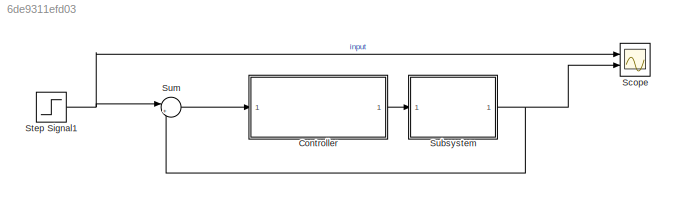
MODEL slx_6de9311efd03
KIND model
CONFIG AbsTol = auto
CONFIG EnableMultiTasking = off
CONFIG FixedStep = auto
CONFIG MaxStep = auto
CONFIG MinStep = auto
CONFIG RelTol = 1e-3
CONFIG SampleTimeConstraint = Unconstrained
CONFIG Solver = ode45
CONFIG SolverName = ode45
CONFIG StartTime = 0.0
CONFIG StopTime = 120
BLOCK [ModelReference] Controller
  ModelNameDialog = PID_basic_block_Controller
  ModelReferenceVersion = 1.9
  Ports = [1, 1]
BLOCK [Scope] Scope
  Floating = off
  NumInputPorts = 2
  Ports = [2]
  ScopeSpecificationString = Simulink.scopes.TimeScopeBlockCfg('CurrentConfiguration', extmgr.ConfigurationSet(extmgr.Configuration('Core','General UI',true),extmgr.Configuration('Core','Source UI',true),extmgr.Configuration('Sources','WiredSimulink',true),extmgr.Configuration('Visuals','Time Domain',true,'SerializedDisplays',{struct('MinYLimReal','-62.5','MaxYLimReal','562.5','YLabelReal','','MinYLimMag','0.00000','MaxYLimMa...<+1942ch>
BLOCK [Step] Step Signal1
  After = u
  SampleTime = 0
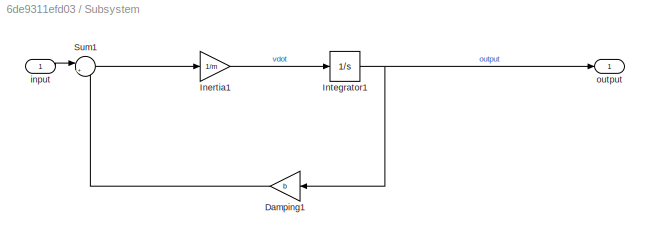
BLOCK [SubSystem] Subsystem
  Ports = [1, 1]
  RequestExecContextInheritance = off
BLOCK [Gain] Subsystem/Damping1
  Gain = b
  NameLocation = top
BLOCK [Gain] Subsystem/Inertia1
  Gain = 1/m
BLOCK [Integrator] Subsystem/Integrator1
  Ports = [1, 1]
BLOCK [Sum] Subsystem/Sum1
  Inputs = |+-
  Ports = [2, 1]
BLOCK [Inport] Subsystem/input
BLOCK [Outport] Subsystem/output
BLOCK [Sum] Sum
  Inputs = |+-
  Ports = [2, 1]
LINE Controller:1 -> Subsystem:1
NET Step Signal1:1 -> Scope:1, Sum:1
LINE Subsystem/Damping1:1 -> Subsystem/Sum1:2
LINE Subsystem/Inertia1:1 -> Subsystem/Integrator1:1
NET Subsystem/Integrator1:1 -> Subsystem/Damping1:1, Subsystem/output:1
LINE Subsystem/Sum1:1 -> Subsystem/Inertia1:1
LINE Subsystem/input:1 -> Subsystem/Sum1:1
NET Subsystem:1 -> Scope:2, Sum:2
LINE Sum:1 -> Controller:1
note: NET lines group one-source signal fan-out (src -> all destinations, sorted); 1:1 wires keep LINE
